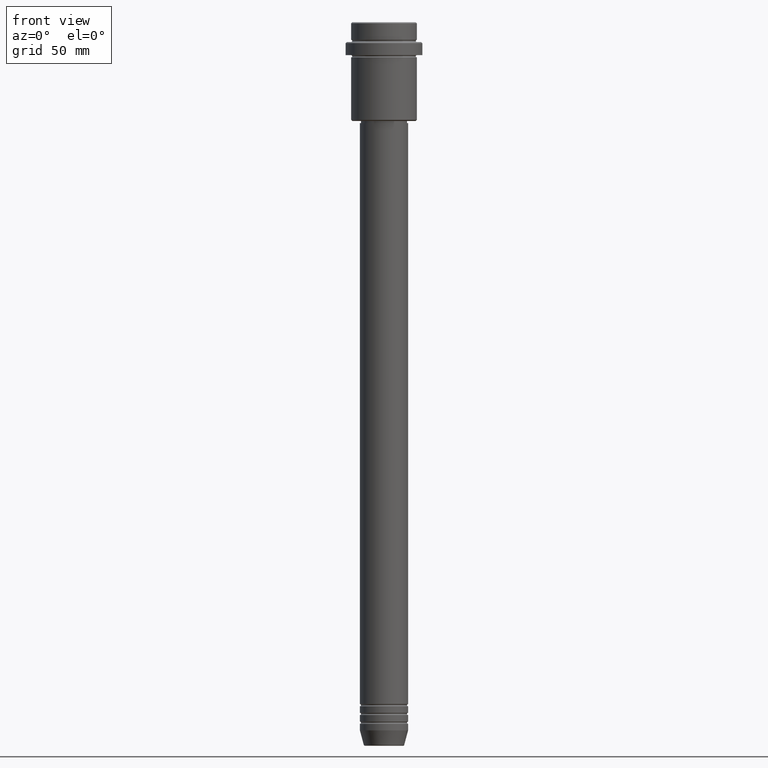
[diagram: clean part render]
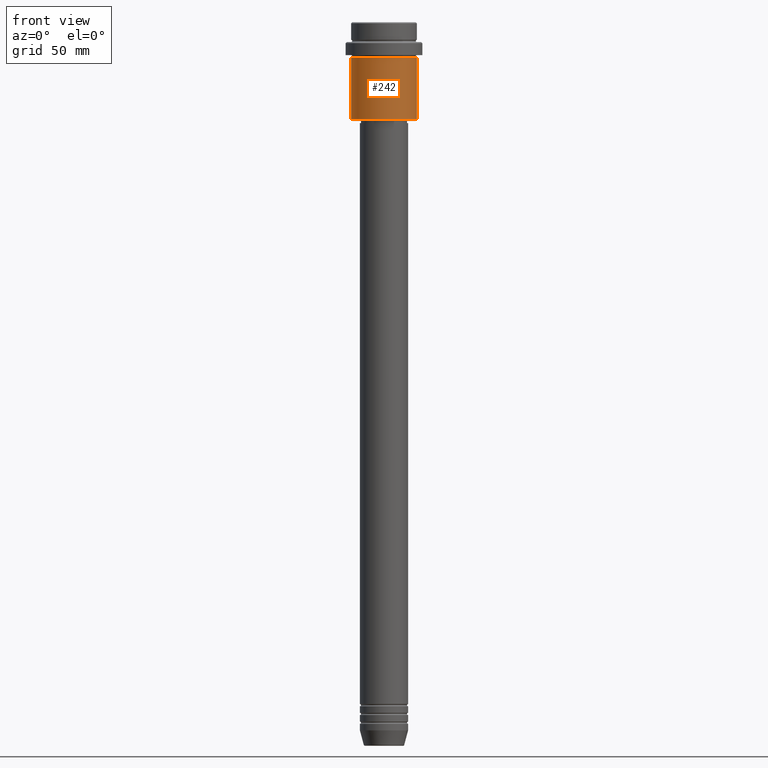
[diagram: same view with one face highlighted and labeled with its STEP entity id]
A machine part, front view. The second image highlights one B-rep face of the part: STEP entity #242.
In plain terms, the highlighted cylindrical surface (edge-blend (fillet) strip) has radius 15 mm, axis along (-0, -0, 1).
Its self-contained STEP definition (entity closure, byte-faithful):
#9 = AXIS2_PLACEMENT_3D ( 'NONE', #1391, #1383, #1372 ) ;
#42 = VERTEX_POINT ( 'NONE', #476 ) ;
#47 = VERTEX_POINT ( 'NONE', #380 ) ;
#79 = CARTESIAN_POINT ( 'NONE',  ( -15.00000000000000000, 1.836970198721029589E-15, 0.000000000000000000 ) ) ;
#130 = CARTESIAN_POINT ( 'NONE',  ( 15.00000000000000000, 0.000000000000000000, 0.000000000000000000 ) ) ;
#160 = ORIENTED_EDGE ( 'NONE', *, *, #366, .T. ) ;
#242 = ADVANCED_FACE ( 'NONE', ( #672 ), #780, .T. ) ;
#273 = LINE ( 'NONE', #130, #1231 ) ;
#325 = DIRECTION ( 'NONE',  ( -1.000000000000000000, 0.000000000000000000, 0.000000000000000000 ) ) ;
#366 = EDGE_CURVE ( 'NONE', #47, #42, #273, .T. ) ;
#380 = CARTESIAN_POINT ( 'NONE',  ( 15.00000000000000000, 0.000000000000000000, -44.49999999999994316 ) ) ;
#400 = EDGE_LOOP ( 'NONE', ( #436, #572, #160, #781 ) ) ;
#436 = ORIENTED_EDGE ( 'NONE', *, *, #606, .F. ) ;
#458 = AXIS2_PLACEMENT_3D ( 'NONE', #771, #1107, #325 ) ;
#476 = CARTESIAN_POINT ( 'NONE',  ( 15.00000000000000178, 0.000000000000000000, -16.00000000000000000 ) ) ;
#480 = CARTESIAN_POINT ( 'NONE',  ( -15.00000000000000355, 1.836970198721029983E-15, -16.00000000000000000 ) ) ;
#499 = EDGE_CURVE ( 'NONE', #803, #42, #835, .T. ) ;
#537 = DIRECTION ( 'NONE',  ( -0.000000000000000000, -0.000000000000000000, 1.000000000000000000 ) ) ;
#572 = ORIENTED_EDGE ( 'NONE', *, *, #654, .T. ) ;
#606 = EDGE_CURVE ( 'NONE', #1003, #803, #644, .T. ) ;
#644 = LINE ( 'NONE', #79, #1077 ) ;
#654 = EDGE_CURVE ( 'NONE', #1003, #47, #668, .T. ) ;
#668 = CIRCLE ( 'NONE', #458, 15.00000000000000000 ) ;
#672 = FACE_OUTER_BOUND ( 'NONE', #400, .T. ) ;
#771 = CARTESIAN_POINT ( 'NONE',  ( 0.000000000000000000, 0.000000000000000000, -44.49999999999994316 ) ) ;
#780 = CYLINDRICAL_SURFACE ( 'NONE', #1320, 15.00000000000000000 ) ;
#781 = ORIENTED_EDGE ( 'NONE', *, *, #499, .F. ) ;
#803 = VERTEX_POINT ( 'NONE', #480 ) ;
#835 = CIRCLE ( 'NONE', #9, 15.00000000000000178 ) ;
#907 = DIRECTION ( 'NONE',  ( 1.000000000000000000, 0.000000000000000000, 0.000000000000000000 ) ) ;
#940 = DIRECTION ( 'NONE',  ( -0.000000000000000000, -0.000000000000000000, 1.000000000000000000 ) ) ;
#1003 = VERTEX_POINT ( 'NONE', #1062 ) ;
#1062 = CARTESIAN_POINT ( 'NONE',  ( -15.00000000000000000, 1.836970198721029589E-15, -44.49999999999994316 ) ) ;
#1077 = VECTOR ( 'NONE', #537, 1000.000000000000000 ) ;
#1107 = DIRECTION ( 'NONE',  ( -0.000000000000000000, -0.000000000000000000, 1.000000000000000000 ) ) ;
#1231 = VECTOR ( 'NONE', #940, 1000.000000000000000 ) ;
#1301 = CARTESIAN_POINT ( 'NONE',  ( 0.000000000000000000, 0.000000000000000000, 0.000000000000000000 ) ) ;
#1320 = AXIS2_PLACEMENT_3D ( 'NONE', #1301, #1414, #907 ) ;
#1372 = DIRECTION ( 'NONE',  ( 1.000000000000000000, 0.000000000000000000, 0.000000000000000000 ) ) ;
#1383 = DIRECTION ( 'NONE',  ( -0.000000000000000000, -0.000000000000000000, 1.000000000000000000 ) ) ;
#1391 = CARTESIAN_POINT ( 'NONE',  ( 0.000000000000000000, 0.000000000000000000, -16.00000000000000000 ) ) ;
#1414 = DIRECTION ( 'NONE',  ( -0.000000000000000000, -0.000000000000000000, 1.000000000000000000 ) ) ;